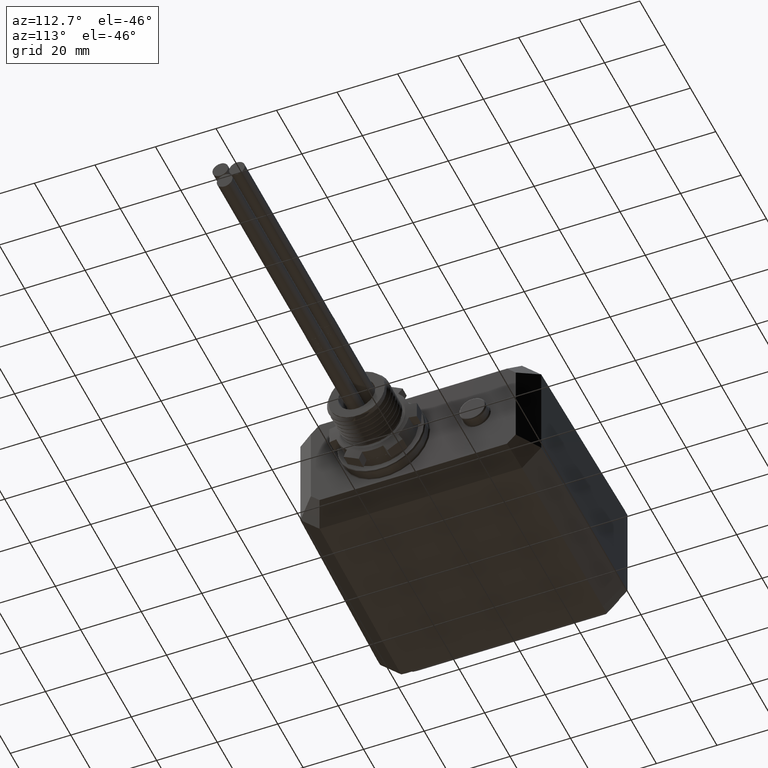
[diagram: clean part render]
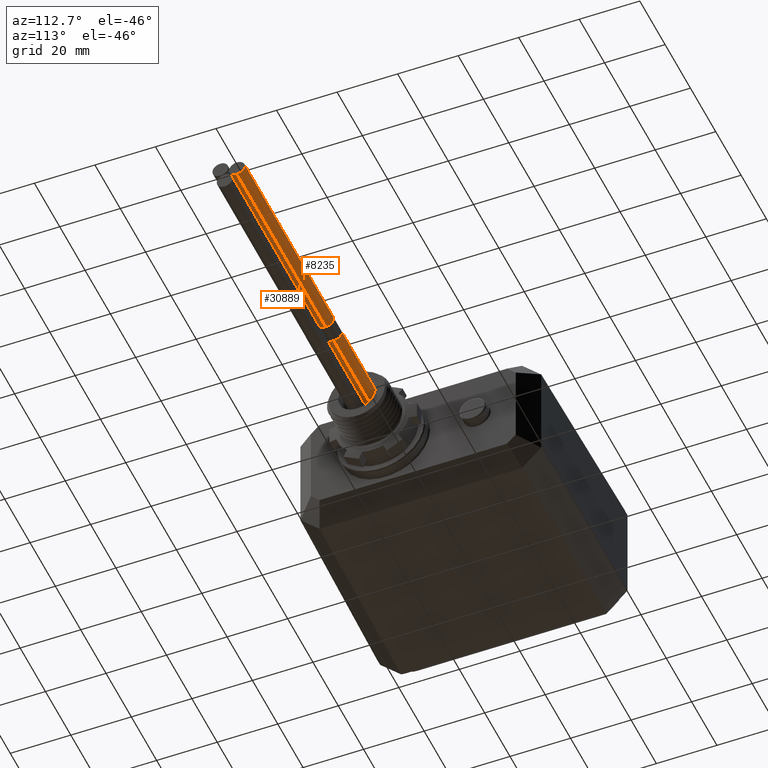
[diagram: same view with one multi-face feature highlighted, each face labeled with its STEP entity id]
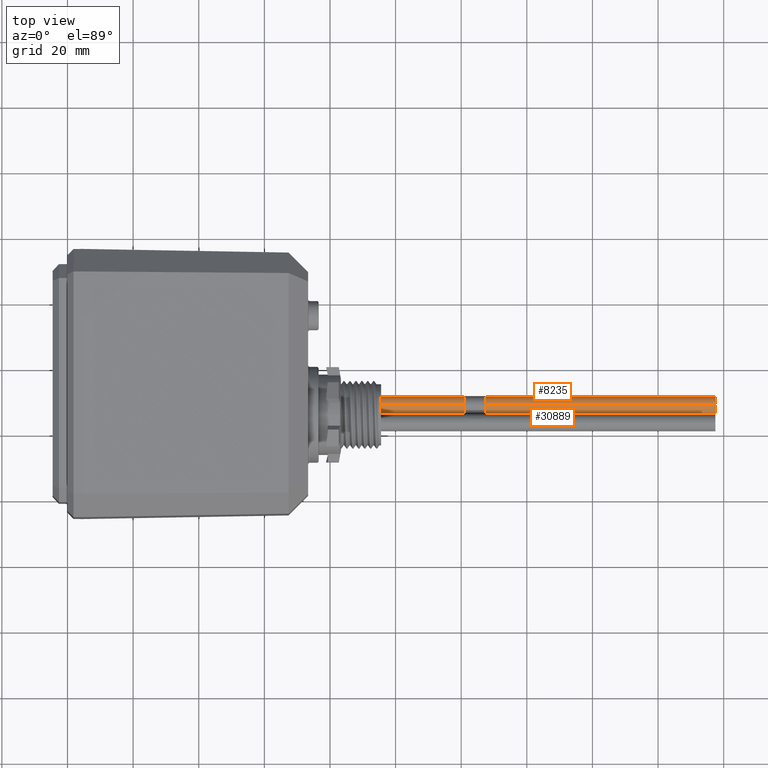
[diagram: same view with one multi-face feature highlighted, each face labeled with its STEP entity id]
A machine part, auxiliary view. The highlighted faces form ONE feature: a constant-radius fillet chain: 2 tangent blend faces with common blend radius 2.6035 mm. The faces share edges in the B-rep.
A second angle (top view) of the same feature is appended — it is thin or edge-on in the first view.
Their STEP definitions:
[1] entity #30889 (Cylinder):
#265 = ORIENTED_EDGE ( 'NONE', *, *, #12904, .F. ) ;
#298 = VERTEX_POINT ( 'NONE', #16948 ) ;
#578 = VERTEX_POINT ( 'NONE', #22538 ) ;
#640 = AXIS2_PLACEMENT_3D ( 'NONE', #27079, #27636, #26754 ) ;
#1633 = CARTESIAN_POINT ( 'NONE',  ( 0.2807748489050736500, 1.146156006825674200, -2.251661870109902300 ) ) ;
#2128 = ORIENTED_EDGE ( 'NONE', *, *, #28363, .T. ) ;
#2189 = CIRCLE ( 'NONE', #24195, 0.1025000000000000600 ) ;
#3686 = VERTEX_POINT ( 'NONE', #1633 ) ;
#4149 = LINE ( 'NONE', #28456, #4431 ) ;
#4431 = VECTOR ( 'NONE', #29790, 39.37007874015748100 ) ;
#4556 = DIRECTION ( 'NONE',  ( 0.0000000000000000000, 0.0000000000000000000, -1.000000000000000000 ) ) ;
#4592 = DIRECTION ( 'NONE',  ( 1.000000000000000000, 0.0000000000000000000, 0.0000000000000000000 ) ) ;
#4704 = CARTESIAN_POINT ( 'NONE',  ( 5.411374848905073700, 1.146156006825674200, -2.149161870109902200 ) ) ;
#6630 = DIRECTION ( 'NONE',  ( 0.0000000000000000000, 0.0000000000000000000, -1.000000000000000000 ) ) ;
#6699 = DIRECTION ( 'NONE',  ( 1.000000000000000000, 0.0000000000000000000, 0.0000000000000000000 ) ) ;
#6791 = CARTESIAN_POINT ( 'NONE',  ( 0.2807748489050736500, 1.146156006825674200, -2.149161870109902200 ) ) ;
#10413 = FACE_OUTER_BOUND ( 'NONE', #25007, .T. ) ;
#11426 = DIRECTION ( 'NONE',  ( 1.000000000000000000, 0.0000000000000000000, 0.0000000000000000000 ) ) ;
#11591 = CARTESIAN_POINT ( 'NONE',  ( 0.2807748489050736500, 1.146156006825674200, -2.046661870109902200 ) ) ;
#12213 = CYLINDRICAL_SURFACE ( 'NONE', #640, 0.1025000000000000600 ) ;
#12376 = ORIENTED_EDGE ( 'NONE', *, *, #34994, .T. ) ;
#12904 = EDGE_CURVE ( 'NONE', #25477, #578, #15300, .T. ) ;
#15300 = CIRCLE ( 'NONE', #20136, 0.1025000000000000600 ) ;
#16430 = ORIENTED_EDGE ( 'NONE', *, *, #31496, .F. ) ;
#16748 = AXIS2_PLACEMENT_3D ( 'NONE', #20201, #20124, #20084 ) ;
#16948 = CARTESIAN_POINT ( 'NONE',  ( 0.2807748489050736500, 1.146156006825674200, -2.046661870109902200 ) ) ;
#19823 = CARTESIAN_POINT ( 'NONE',  ( 0.2807748489050736500, 1.043656006825674200, -2.149161870109902200 ) ) ;
#20084 = DIRECTION ( 'NONE',  ( 0.0000000000000000000, 0.0000000000000000000, -1.000000000000000000 ) ) ;
#20124 = DIRECTION ( 'NONE',  ( 1.000000000000000000, 0.0000000000000000000, 0.0000000000000000000 ) ) ;
#20136 = AXIS2_PLACEMENT_3D ( 'NONE', #4704, #4592, #4556 ) ;
#20146 = CIRCLE ( 'NONE', #16748, 0.1025000000000000600 ) ;
#20201 = CARTESIAN_POINT ( 'NONE',  ( 0.2807748489050736500, 1.146156006825674200, -2.149161870109902200 ) ) ;
#22389 = CARTESIAN_POINT ( 'NONE',  ( 5.411374848905073700, 1.146156006825674200, -2.046661870109902200 ) ) ;
#22538 = CARTESIAN_POINT ( 'NONE',  ( 5.411374848905073700, 1.146156006825674200, -2.251661870109902300 ) ) ;
#24195 = AXIS2_PLACEMENT_3D ( 'NONE', #6791, #6699, #6630 ) ;
#25007 = EDGE_LOOP ( 'NONE', ( #16430, #27089, #12376, #2128, #265 ) ) ;
#25477 = VERTEX_POINT ( 'NONE', #22389 ) ;
#25851 = EDGE_CURVE ( 'NONE', #298, #33326, #2189, .T. ) ;
#26754 = DIRECTION ( 'NONE',  ( 0.0000000000000000000, 0.0000000000000000000, -1.000000000000000000 ) ) ;
#27079 = CARTESIAN_POINT ( 'NONE',  ( 0.2807748489050736500, 1.146156006825674200, -2.149161870109902200 ) ) ;
#27089 = ORIENTED_EDGE ( 'NONE', *, *, #25851, .T. ) ;
#27636 = DIRECTION ( 'NONE',  ( 1.000000000000000000, 0.0000000000000000000, 0.0000000000000000000 ) ) ;
#28363 = EDGE_CURVE ( 'NONE', #3686, #578, #4149, .T. ) ;
#28456 = CARTESIAN_POINT ( 'NONE',  ( 0.2807748489050736500, 1.146156006825674200, -2.251661870109902300 ) ) ;
#29790 = DIRECTION ( 'NONE',  ( 1.000000000000000000, 0.0000000000000000000, 0.0000000000000000000 ) ) ;
#30889 = ADVANCED_FACE ( 'NONE', ( #10413 ), #12213, .T. ) ;
#31496 = EDGE_CURVE ( 'NONE', #298, #25477, #32278, .T. ) ;
#32278 = LINE ( 'NONE', #11591, #32732 ) ;
#32732 = VECTOR ( 'NONE', #11426, 39.37007874015748100 ) ;
#33326 = VERTEX_POINT ( 'NONE', #19823 ) ;
#34994 = EDGE_CURVE ( 'NONE', #33326, #3686, #20146, .T. ) ;
[2] entity #8235 (Cylinder):
#298 = VERTEX_POINT ( 'NONE', #16948 ) ;
#578 = VERTEX_POINT ( 'NONE', #22538 ) ;
#1633 = CARTESIAN_POINT ( 'NONE',  ( 0.2807748489050736500, 1.146156006825674200, -2.251661870109902300 ) ) ;
#3686 = VERTEX_POINT ( 'NONE', #1633 ) ;
#3701 = AXIS2_PLACEMENT_3D ( 'NONE', #17192, #17113, #17078 ) ;
#4149 = LINE ( 'NONE', #28456, #4431 ) ;
#4431 = VECTOR ( 'NONE', #29790, 39.37007874015748100 ) ;
#4493 = DIRECTION ( 'NONE',  ( 0.0000000000000000000, 0.0000000000000000000, -1.000000000000000000 ) ) ;
#4845 = EDGE_CURVE ( 'NONE', #578, #25477, #6481, .T. ) ;
#4949 = DIRECTION ( 'NONE',  ( 1.000000000000000000, 0.0000000000000000000, 0.0000000000000000000 ) ) ;
#5072 = CARTESIAN_POINT ( 'NONE',  ( 0.2807748489050736500, 1.146156006825674200, -2.149161870109902200 ) ) ;
#5835 = ORIENTED_EDGE ( 'NONE', *, *, #28363, .F. ) ;
#6481 = CIRCLE ( 'NONE', #22119, 0.1025000000000000600 ) ;
#8235 = ADVANCED_FACE ( 'NONE', ( #29998 ), #16139, .T. ) ;
#8533 = ORIENTED_EDGE ( 'NONE', *, *, #12586, .T. ) ;
#11143 = EDGE_CURVE ( 'NONE', #16132, #298, #34184, .T. ) ;
#11426 = DIRECTION ( 'NONE',  ( 1.000000000000000000, 0.0000000000000000000, 0.0000000000000000000 ) ) ;
#11591 = CARTESIAN_POINT ( 'NONE',  ( 0.2807748489050736500, 1.146156006825674200, -2.046661870109902200 ) ) ;
#12586 = EDGE_CURVE ( 'NONE', #3686, #16132, #24183, .T. ) ;
#16132 = VERTEX_POINT ( 'NONE', #21304 ) ;
#16139 = CYLINDRICAL_SURFACE ( 'NONE', #21255, 0.1025000000000000600 ) ;
#16948 = CARTESIAN_POINT ( 'NONE',  ( 0.2807748489050736500, 1.146156006825674200, -2.046661870109902200 ) ) ;
#17078 = DIRECTION ( 'NONE',  ( 0.0000000000000000000, 0.0000000000000000000, -1.000000000000000000 ) ) ;
#17113 = DIRECTION ( 'NONE',  ( 1.000000000000000000, 0.0000000000000000000, 0.0000000000000000000 ) ) ;
#17192 = CARTESIAN_POINT ( 'NONE',  ( 0.2807748489050736500, 1.146156006825674200, -2.149161870109902200 ) ) ;
#21255 = AXIS2_PLACEMENT_3D ( 'NONE', #5072, #4949, #4493 ) ;
#21269 = ORIENTED_EDGE ( 'NONE', *, *, #31496, .T. ) ;
#21304 = CARTESIAN_POINT ( 'NONE',  ( 0.2807748489050736500, 1.248656006825674200, -2.149161870109902200 ) ) ;
#22119 = AXIS2_PLACEMENT_3D ( 'NONE', #27606, #27592, #27565 ) ;
#22328 = ORIENTED_EDGE ( 'NONE', *, *, #11143, .T. ) ;
#22389 = CARTESIAN_POINT ( 'NONE',  ( 5.411374848905073700, 1.146156006825674200, -2.046661870109902200 ) ) ;
#22538 = CARTESIAN_POINT ( 'NONE',  ( 5.411374848905073700, 1.146156006825674200, -2.251661870109902300 ) ) ;
#23177 = ORIENTED_EDGE ( 'NONE', *, *, #4845, .F. ) ;
#24183 = CIRCLE ( 'NONE', #3701, 0.1025000000000000600 ) ;
#25477 = VERTEX_POINT ( 'NONE', #22389 ) ;
#27095 = EDGE_LOOP ( 'NONE', ( #8533, #22328, #21269, #23177, #5835 ) ) ;
#27565 = DIRECTION ( 'NONE',  ( 0.0000000000000000000, 0.0000000000000000000, -1.000000000000000000 ) ) ;
#27592 = DIRECTION ( 'NONE',  ( 1.000000000000000000, 0.0000000000000000000, 0.0000000000000000000 ) ) ;
#27606 = CARTESIAN_POINT ( 'NONE',  ( 5.411374848905073700, 1.146156006825674200, -2.149161870109902200 ) ) ;
#28363 = EDGE_CURVE ( 'NONE', #3686, #578, #4149, .T. ) ;
#28433 = DIRECTION ( 'NONE',  ( 0.0000000000000000000, 0.0000000000000000000, -1.000000000000000000 ) ) ;
#28456 = CARTESIAN_POINT ( 'NONE',  ( 0.2807748489050736500, 1.146156006825674200, -2.251661870109902300 ) ) ;
#28533 = DIRECTION ( 'NONE',  ( 1.000000000000000000, 0.0000000000000000000, 0.0000000000000000000 ) ) ;
#28540 = CARTESIAN_POINT ( 'NONE',  ( 0.2807748489050736500, 1.146156006825674200, -2.149161870109902200 ) ) ;
#29790 = DIRECTION ( 'NONE',  ( 1.000000000000000000, 0.0000000000000000000, 0.0000000000000000000 ) ) ;
#29998 = FACE_OUTER_BOUND ( 'NONE', #27095, .T. ) ;
#31496 = EDGE_CURVE ( 'NONE', #298, #25477, #32278, .T. ) ;
#32212 = AXIS2_PLACEMENT_3D ( 'NONE', #28540, #28533, #28433 ) ;
#32278 = LINE ( 'NONE', #11591, #32732 ) ;
#32732 = VECTOR ( 'NONE', #11426, 39.37007874015748100 ) ;
#34184 = CIRCLE ( 'NONE', #32212, 0.1025000000000000600 ) ;